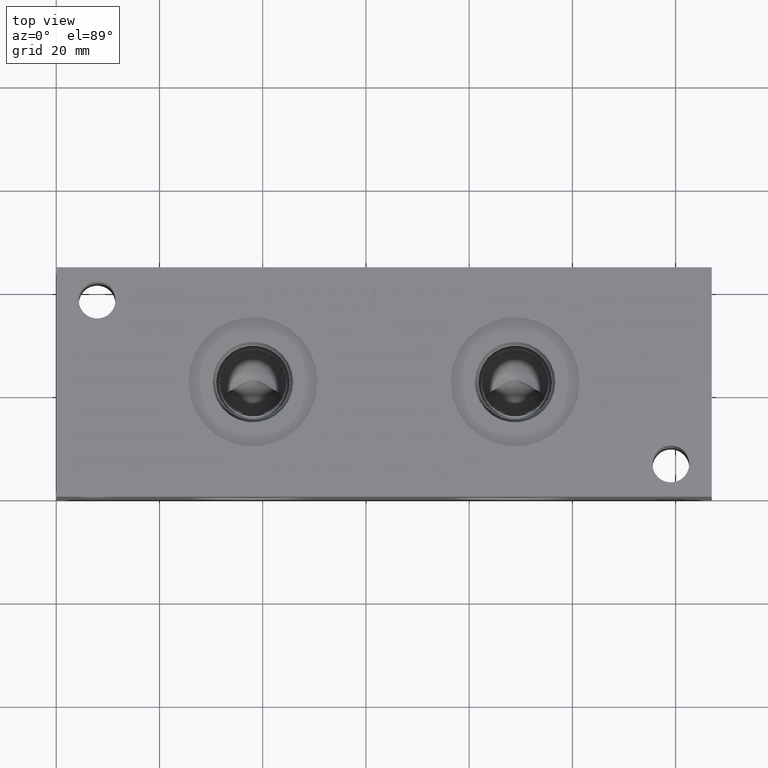
[diagram: clean part render]
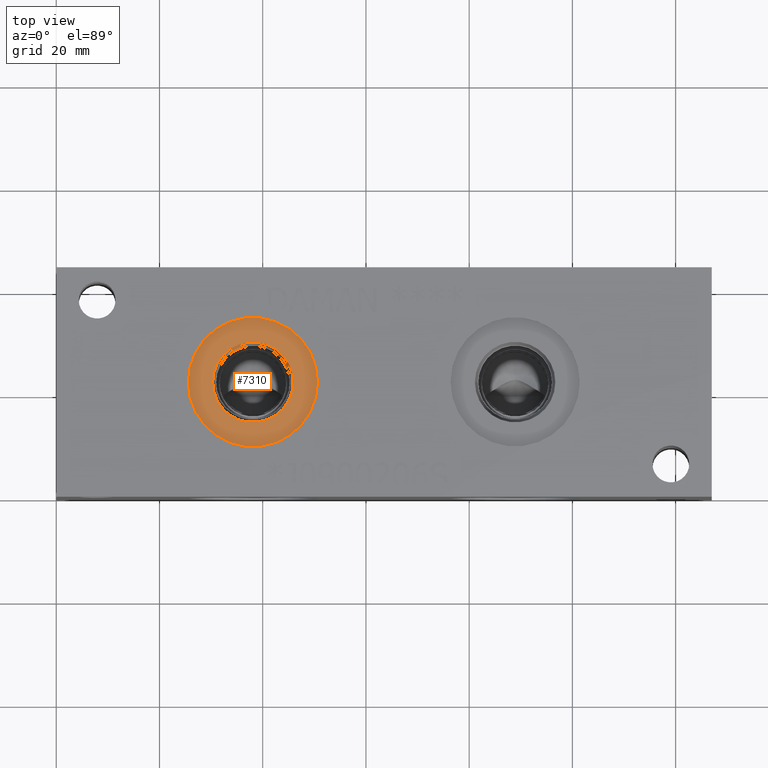
[diagram: same view with one face highlighted and labeled with its STEP entity id]
A machine part, top view. The second image highlights one B-rep face of the part: STEP entity #7310.
In plain terms, the highlighted planar face has unit normal (0, 0, -1).
Its self-contained STEP definition (entity closure, byte-faithful):
#147=CIRCLE('',#7661,12.5095);
#148=CIRCLE('',#7662,12.5095);
#149=CIRCLE('',#7664,7.7978);
#150=CIRCLE('',#7665,7.7978);
#194=FACE_BOUND('',#1372,.T.);
#958=FACE_OUTER_BOUND('',#1371,.T.);
#1371=EDGE_LOOP('',(#6378,#6379));
#1372=EDGE_LOOP('',(#6380,#6381));
#3368=VERTEX_POINT('',#12767);
#3369=VERTEX_POINT('',#12769);
#3370=VERTEX_POINT('',#12773);
#3371=VERTEX_POINT('',#12774);
#4379=EDGE_CURVE('',#3368,#3369,#147,.T.);
#4380=EDGE_CURVE('',#3369,#3368,#148,.T.);
#4381=EDGE_CURVE('',#3370,#3371,#149,.T.);
#4382=EDGE_CURVE('',#3371,#3370,#150,.T.);
#6378=ORIENTED_EDGE('',*,*,#4380,.F.);
#6379=ORIENTED_EDGE('',*,*,#4379,.F.);
#6380=ORIENTED_EDGE('',*,*,#4381,.T.);
#6381=ORIENTED_EDGE('',*,*,#4382,.T.);
#6631=PLANE('',#7663);
#7310=ADVANCED_FACE('',(#958,#194),#6631,.F.);
#7661=AXIS2_PLACEMENT_3D('',#12770,#8980,#8981);
#7662=AXIS2_PLACEMENT_3D('',#12771,#8982,#8983);
#7663=AXIS2_PLACEMENT_3D('',#12772,#8984,#8985);
#7664=AXIS2_PLACEMENT_3D('',#12775,#8986,#8987);
#7665=AXIS2_PLACEMENT_3D('',#12776,#8988,#8989);
#8980=DIRECTION('center_axis',(0.,0.,-1.));
#8981=DIRECTION('ref_axis',(1.,0.,0.));
#8982=DIRECTION('center_axis',(0.,0.,-1.));
#8983=DIRECTION('ref_axis',(1.,0.,0.));
#8984=DIRECTION('center_axis',(0.,0.,-1.));
#8985=DIRECTION('ref_axis',(-1.,0.,0.));
#8986=DIRECTION('center_axis',(0.,0.,-1.));
#8987=DIRECTION('ref_axis',(1.,0.,0.));
#8988=DIRECTION('center_axis',(0.,0.,-1.));
#8989=DIRECTION('ref_axis',(1.,0.,0.));
#12767=CARTESIAN_POINT('',(25.5905,22.225,43.6626));
#12769=CARTESIAN_POINT('',(50.6095,22.225,43.6626));
#12770=CARTESIAN_POINT('Origin',(38.1,22.225,43.6626));
#12771=CARTESIAN_POINT('Origin',(38.1,22.225,43.6626));
#12772=CARTESIAN_POINT('Origin',(45.8978,22.225,43.6626));
#12773=CARTESIAN_POINT('',(45.8978,22.225,43.6626));
#12774=CARTESIAN_POINT('',(30.3022,22.225,43.6626));
#12775=CARTESIAN_POINT('Origin',(38.1,22.225,43.6626));
#12776=CARTESIAN_POINT('Origin',(38.1,22.225,43.6626));